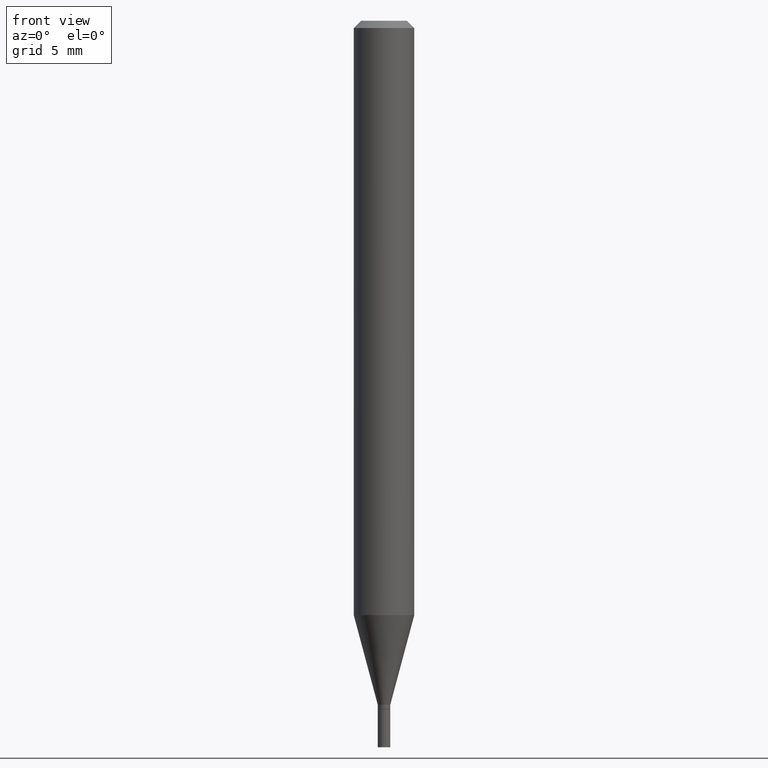
[diagram: clean part render]
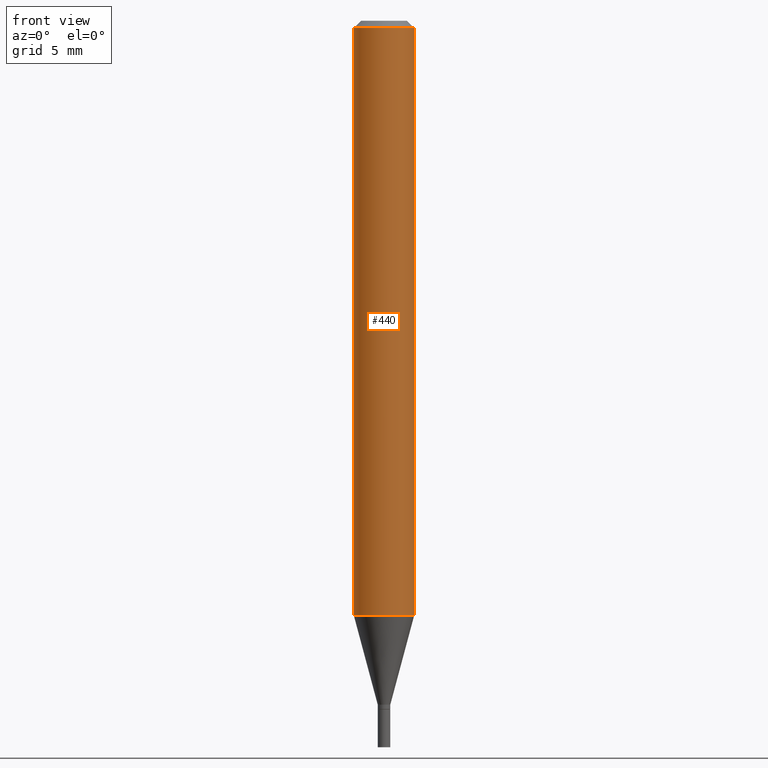
[diagram: same view with one face highlighted and labeled with its STEP entity id]
A machine part, front view. The second image highlights one B-rep face of the part: STEP entity #440.
In plain terms, the highlighted cylindrical surface (edge-blend (fillet) strip) has radius 1.5875 mm, axis along (-0, 0, 1).
Its self-contained STEP definition (entity closure, byte-faithful):
#13 = DIRECTION ( 'NONE',  ( -2.445468806185136877E-29, 3.491481338843145188E-15, 1.000000000000000000 ) ) ;
#32 = CARTESIAN_POINT ( 'NONE',  ( 0.06250000000000000000, -4.364351673553916694E-16, 3.047610484872459871E-30 ) ) ;
#41 = DIRECTION ( 'NONE',  ( 1.000000000000000000, -6.982962677686266711E-15, 0.000000000000000000 ) ) ;
#45 = VECTOR ( 'NONE', #386, 39.37007874015748143 ) ;
#55 = EDGE_CURVE ( 'NONE', #201, #75, #383, .T. ) ;
#75 = VERTEX_POINT ( 'NONE', #283 ) ;
#82 = AXIS2_PLACEMENT_3D ( 'NONE', #132, #261, #408 ) ;
#87 = VERTEX_POINT ( 'NONE', #392 ) ;
#96 = CIRCLE ( 'NONE', #388, 0.06250000000000000000 ) ;
#100 = EDGE_LOOP ( 'NONE', ( #269, #424, #230, #195 ) ) ;
#121 = CIRCLE ( 'NONE', #82, 0.06250000000000000000 ) ;
#132 = CARTESIAN_POINT ( 'NONE',  ( 3.001234569599529890E-29, -4.284967555809580668E-15, -1.227263485025340550 ) ) ;
#164 = VECTOR ( 'NONE', #13, 39.37007874015748143 ) ;
#173 = EDGE_CURVE ( 'NONE', #87, #75, #96, .T. ) ;
#192 = CARTESIAN_POINT ( 'NONE',  ( -0.06250000000000000000, 4.440892098500626162E-16, -3.074334431409316114E-30 ) ) ;
#195 = ORIENTED_EDGE ( 'NONE', *, *, #173, .F. ) ;
#201 = VERTEX_POINT ( 'NONE', #286 ) ;
#230 = ORIENTED_EDGE ( 'NONE', *, *, #55, .T. ) ;
#259 = CYLINDRICAL_SURFACE ( 'NONE', #294, 0.06250000000000000000 ) ;
#261 = DIRECTION ( 'NONE',  ( -2.445468806185136597E-29, 3.491481338843145583E-15, 1.000000000000000000 ) ) ;
#266 = FACE_OUTER_BOUND ( 'NONE', #100, .T. ) ;
#269 = ORIENTED_EDGE ( 'NONE', *, *, #321, .F. ) ;
#283 = CARTESIAN_POINT ( 'NONE',  ( 0.06250000000000000000, -4.888073874380388472E-16, -0.01499999999999999944 ) ) ;
#286 = CARTESIAN_POINT ( 'NONE',  ( 0.06249999999999999306, -4.721402723164972337E-15, -1.227263485025340550 ) ) ;
#294 = AXIS2_PLACEMENT_3D ( 'NONE', #410, #448, #412 ) ;
#298 = LINE ( 'NONE', #192, #164 ) ;
#321 = EDGE_CURVE ( 'NONE', #346, #87, #298, .T. ) ;
#346 = VERTEX_POINT ( 'NONE', #376 ) ;
#367 = DIRECTION ( 'NONE',  ( -2.445468806185136597E-29, 3.491481338843145583E-15, 1.000000000000000000 ) ) ;
#376 = CARTESIAN_POINT ( 'NONE',  ( -0.06249999999999999306, -3.840878345959517263E-15, -1.227263485025340550 ) ) ;
#383 = LINE ( 'NONE', #32, #45 ) ;
#386 = DIRECTION ( 'NONE',  ( -2.445468806185136877E-29, 3.491481338843145188E-15, 1.000000000000000000 ) ) ;
#388 = AXIS2_PLACEMENT_3D ( 'NONE', #398, #367, #41 ) ;
#392 = CARTESIAN_POINT ( 'NONE',  ( -0.06250000000000000000, -1.724580678096051257E-15, -0.01499999999999999944 ) ) ;
#398 = CARTESIAN_POINT ( 'NONE',  ( 3.668203209277705088E-31, -5.237222008264718399E-17, -0.01499999999999999944 ) ) ;
#408 = DIRECTION ( 'NONE',  ( 1.000000000000000000, -6.982962677686270655E-15, 0.000000000000000000 ) ) ;
#410 = CARTESIAN_POINT ( 'NONE',  ( 0.000000000000000000, 0.000000000000000000, 0.000000000000000000 ) ) ;
#412 = DIRECTION ( 'NONE',  ( 1.000000000000000000, -6.982962677686266711E-15, 4.876176775795935793E-29 ) ) ;
#421 = EDGE_CURVE ( 'NONE', #346, #201, #121, .T. ) ;
#424 = ORIENTED_EDGE ( 'NONE', *, *, #421, .T. ) ;
#440 = ADVANCED_FACE ( 'NONE', ( #266 ), #259, .T. ) ;
#448 = DIRECTION ( 'NONE',  ( -2.445468806185136597E-29, 3.491481338843145583E-15, 1.000000000000000000 ) ) ;